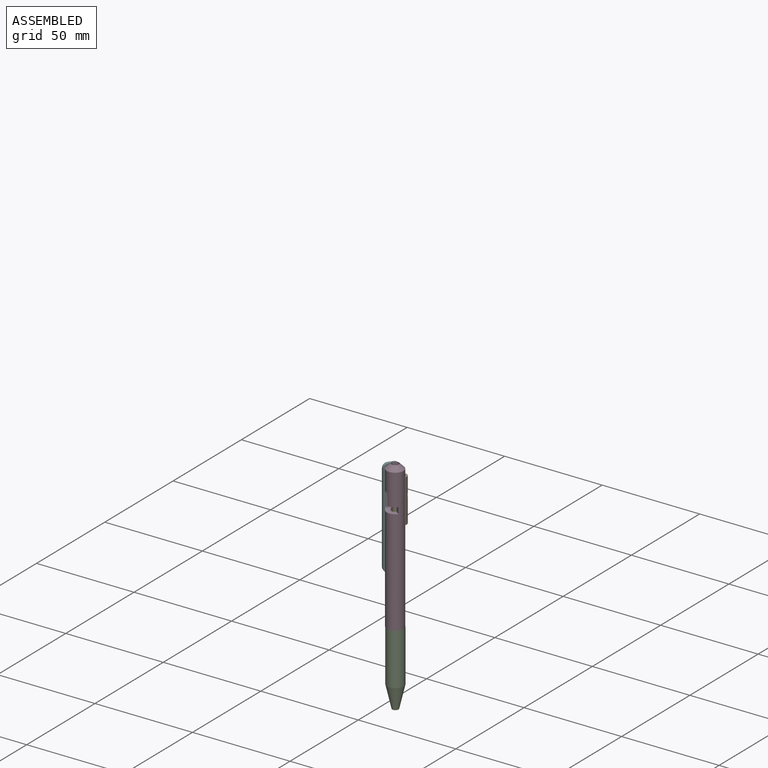
[diagram: assembled view]
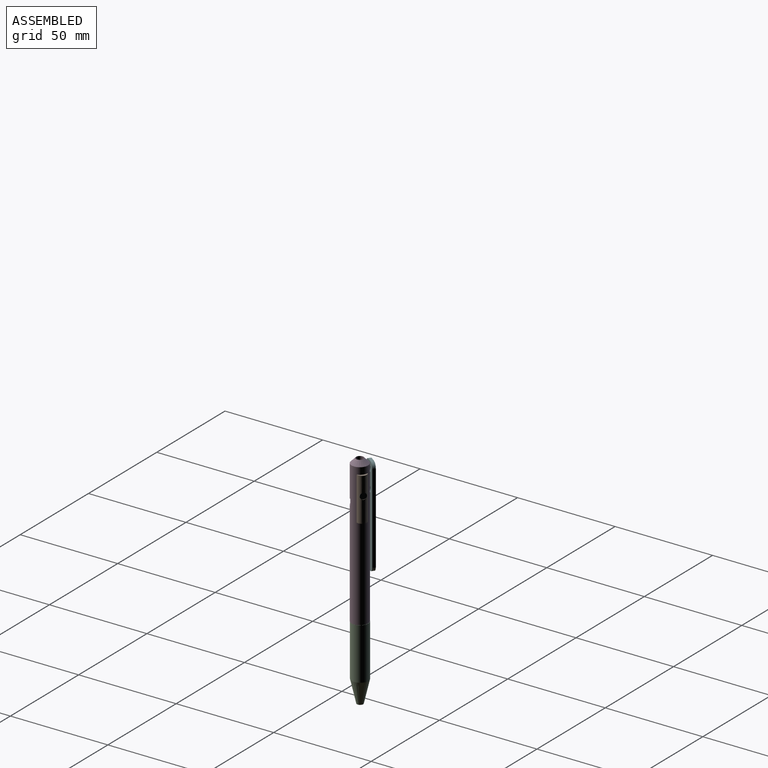
[diagram: assembled view, second angle]
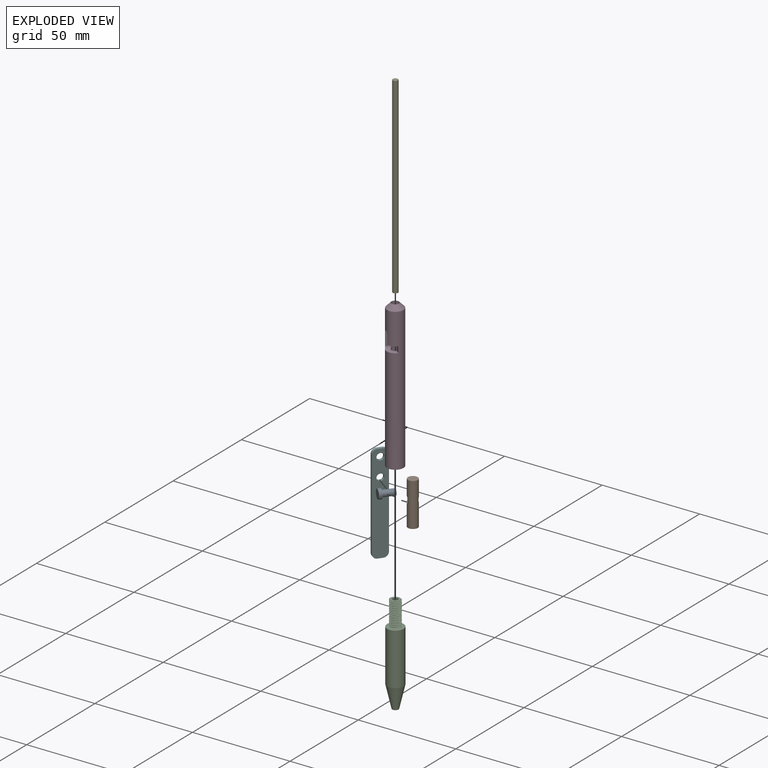
[diagram: exploded view]
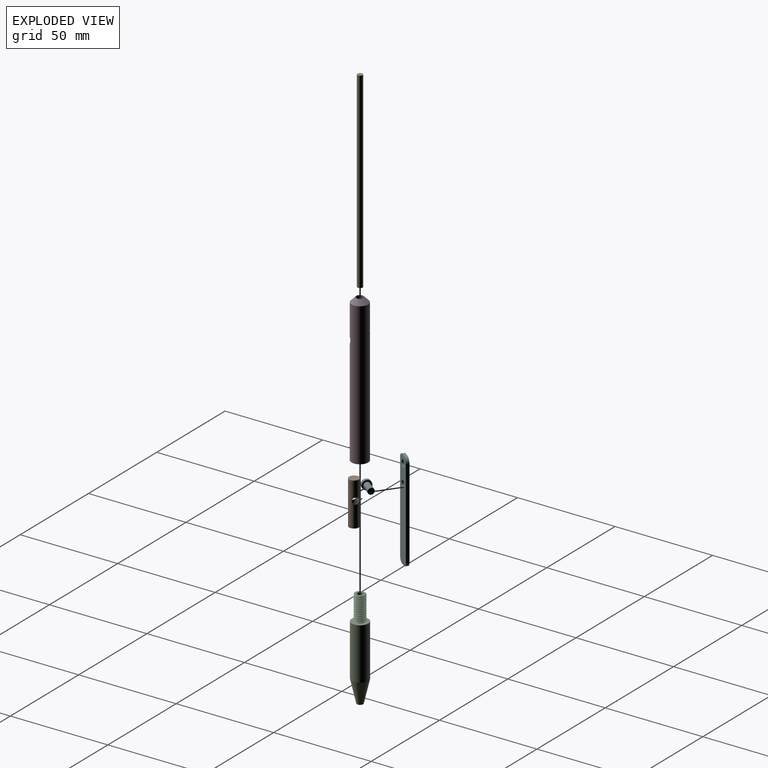
[diagram: exploded view, second angle]
ASSEMBLY  parts=6 mates=4
PART A: 5 faces, bbox 4.8x4.8x7.9 mm
  f0: cylinder r=1.59mm len=6.35mm, axis (0,0,-1), area 63.3mm2, adj f1,f4
  f1: plane 3.18x3.18mm, normal (0,0,-1), area 7.9mm2, adj f0
  f2: cylinder r=2.38mm len=4.76mm, axis (0,0,-1), area 23.8mm2, adj f3,f4
  f3: plane 4.76x4.76mm, normal (0,0,1), area 17.8mm2, adj f2
  f4: plane 4.76x4.76mm, normal (0,0,-1), area 9.9mm2, adj f0,f2
PART B: 7 faces, bbox 5.1x5.1x22.2 mm
  f0: cylinder r=1.59mm len=5.08mm, axis (0,-1,0), area 26mm2, adj f1,f4,f5,f6
  f1: cylinder r=2.54mm len=22.23mm, axis (0,0,-1), area 338mm2, adj f0,f2,f3
  f2: plane 5.08x5.08mm, normal (0,0,1), area 20.3mm2, adj f1
  f3: plane 5.08x5.08mm, normal (0,0,-1), area 4.4mm2, adj f1,f5
  f4: plane 3.18x0.66mm, normal (0,0,-1), area 1.4mm2, adj f0,f5
  f5: cylinder r=2.25mm len=12.7mm, axis (0,0,-1), area 170.8mm2, adj f0,f3,f4,f6
  f6: plane 3.18x0.66mm, normal (0,0,-1), area 1.4mm2, adj f0,f5
PART C: 10 faces, bbox 8.7x8.7x51.3 mm
  f0: cylinder r=4.25mm len=26.63mm, axis (0,0,-1), area 711.9mm2, adj f1,f6
  f1: plane 8.73x8.73mm, normal (0,0,1), area 37.8mm2, adj f0,f3,f7,f8,f9
  f2: plane 3.21x3.21mm, normal (0,0,-1), area 2.4mm2, adj f5,f6
  f3: cylinder r=2.71mm len=12.7mm, axis (0,0,-1), area 42mm2, adj f1,f4,f8,f9
  f4: plane 5.17x5.14mm, normal (0,0,1), area 13.3mm2, adj f3,f5,f7,f8,f9
  f5: cylinder r=1.35mm len=50.8mm, axis (0,0,1), area 431.7mm2, adj f2,f4
  f6: cone r=1.61mm half-angle=13deg, axis (0,0,1), area 216.7mm2, adj f0,f2
  f7: bspline ~13.3x5.26mm, area 50.1mm2, adj f1,f4,f8,f9
  f8: bspline ~13.35x6.25mm, area 124.3mm2, adj f1,f3,f4,f7
  f9: bspline ~13.21x6.25mm, area 124.6mm2, adj f1,f3,f4,f7
PART D: 21 faces, bbox 8.7x8.7x76.1 mm
  f0: plane 8.73x8.73mm, normal (0,0,-1), area 37.8mm2, adj f2,f16,f17,f18,f19
  f1: plane 1.44x0.16mm, normal (0,1,0), area 0.2mm2, adj f5,f14
  f2: cylinder r=4.25mm len=73.22mm, axis (0,0,-1), area 1894.9mm2, adj f0,f3,f5,f7,f8,f9,f10,f11
  f3: cylinder r=1.73mm len=3.45mm, axis (0,1,0), area 29.4mm2, adj f2,f4,f11,f14
  f4: plane 1.44x0.16mm, normal (0,1,0), area 0.2mm2, adj f3,f14
  f5: cylinder r=1.73mm len=3.45mm, axis (0,1,0), area 30.8mm2, adj f1,f2,f6,f14
  f6: plane 1.44x0.16mm, normal (0,1,0), area 0.2mm2, adj f5,f14
  f7: cylinder r=1.59mm len=3.2mm, axis (-1,0,0), area 6.5mm2, adj f2,f10,f11,f14
  f8: plane 4.76x2.89mm, normal (0,1,0), area 13.8mm2, adj f2,f9,f12,f14
  f9: plane 3.95x2.67mm, normal (0,0,-1), area 7.4mm2, adj f2,f8,f13,f14
  f10: plane 4.25x4.25mm, normal (0,0,1), area 11.4mm2, adj f2,f7,f13,f14
  f11: plane 6.35x2.89mm, normal (0,-1,0), area 17.1mm2, adj f2,f3,f7,f12,f14
  f12: cylinder r=1.59mm len=3.2mm, axis (-1,0,0), area 13.1mm2, adj f2,f8,f11,f14
  f13: plane 3.18x2.35mm, normal (-1,0,0), area 7.5mm2, adj f2,f9,f10,f14
  f14: cylinder r=1.91mm len=62.87mm, axis (0,0,-1), area 696.4mm2, adj f1,f3,f4,f5,f6,f7,f8,f9
  f15: plane 5.17x5.14mm, normal (0,0,-1), area 7.6mm2, adj f14,f16,f17,f18,f19
  f16: cylinder r=2.71mm len=12.7mm, axis (0,0,-1), area 42mm2, adj f0,f15,f18,f19
  f17: bspline ~13.3x5.26mm, area 50.1mm2, adj f0,f15,f18,f19
  f18: bspline ~13.35x6.25mm, area 124.3mm2, adj f0,f15,f16,f17
  f19: bspline ~13.21x6.25mm, area 124.6mm2, adj f0,f15,f16,f17
  f20: cone r=1.27mm half-angle=45deg, axis (0,0,-1), area 64.3mm2, adj f2,f14
PART E: 3 faces, bbox 2.7x2.7x98.4 mm
  f0: plane 2.72x2.72mm, normal (0,0,1), area 5.8mm2, adj f2
  f1: plane 2.72x2.72mm, normal (0,0,-1), area 5.8mm2, adj f2
  f2: cylinder r=1.36mm len=98.43mm, axis (0,0,-1), area 840.4mm2, adj f0,f1
PART F: 12 faces, bbox 7.6x1.6x50.8 mm
  f0: cylinder r=2.54mm len=2.54mm, axis (0,1,0), area 6.3mm2, adj f1,f7,f8,f9
  f1: plane 2.54x1.59mm, normal (0,0,-1), area 4mm2, adj f0,f2,f8,f9
  f2: cylinder r=2.54mm len=2.54mm, axis (0,1,0), area 6.3mm2, adj f1,f3,f8,f9
  f3: plane 45.72x1.59mm, normal (1,0,0), area 72.6mm2, adj f2,f4,f8,f9
  f4: cylinder r=2.54mm len=2.54mm, axis (0,1,0), area 6.3mm2, adj f3,f5,f8,f9
  f5: plane 2.54x1.59mm, normal (0,0,1), area 4mm2, adj f4,f6,f8,f9
  f6: cylinder r=2.54mm len=2.54mm, axis (0,1,0), area 6.3mm2, adj f5,f7,f8,f9
  f7: plane 45.72x1.59mm, normal (-1,0,0), area 72.6mm2, adj f0,f6,f8,f9
  f8: plane 50.8x7.62mm, normal (0,-1,0), area 362.8mm2, adj f0,f1,f2,f3,f4,f5,f6,f7
  f9: plane 50.8x7.62mm, normal (0,1,0), area 362.8mm2, adj f0,f1,f2,f3,f4,f5,f6,f7
  f10: cylinder r=1.73mm len=3.45mm, axis (0,1,0), area 17.2mm2, adj f8,f9
  f11: cylinder r=1.73mm len=3.45mm, axis (0,1,0), area 17.2mm2, adj f8,f9
PLACE A rot(axis=(-0.44,-0.55,0.71),179.7deg) t=(11.54,19.07,78.43)mm
PLACE B rot(axis=(0,0,1),141.2deg) t=(10.13,17.32,65.73)mm
PLACE C rot(axis=(0,0,1),53.7deg) t=(8.41,15.18,-19.85)mm
PLACE D rot(axis=(0,0,1),53.7deg) t=(8.38,15.07,18.25)mm fixed
PLACE E rot(axis=(0,0,-1),36.3deg) t=(8.41,15.18,-18.41)mm
PLACE F rot(axis=(0,0,1),53.7deg) t=(1.37,15.38,92.25)mm
MATE fastened C.f0 <-> D.f0  axis (0,0,-1) through (8.41,15.18,18.25)mm
MATE parallel F.f10 <-> D.f3  axis (0.81,-0.59,0) through (4.91,17.5,78.91)mm
MATE cylindrical A.f0 <-> B.f0  axis (0.63,0.78,0) through (9.55,16.6,78.43)mm
MATE slider E.f2 <-> C.f0  axis (0,0,-1) through (8.41,15.18,30.8)mm
